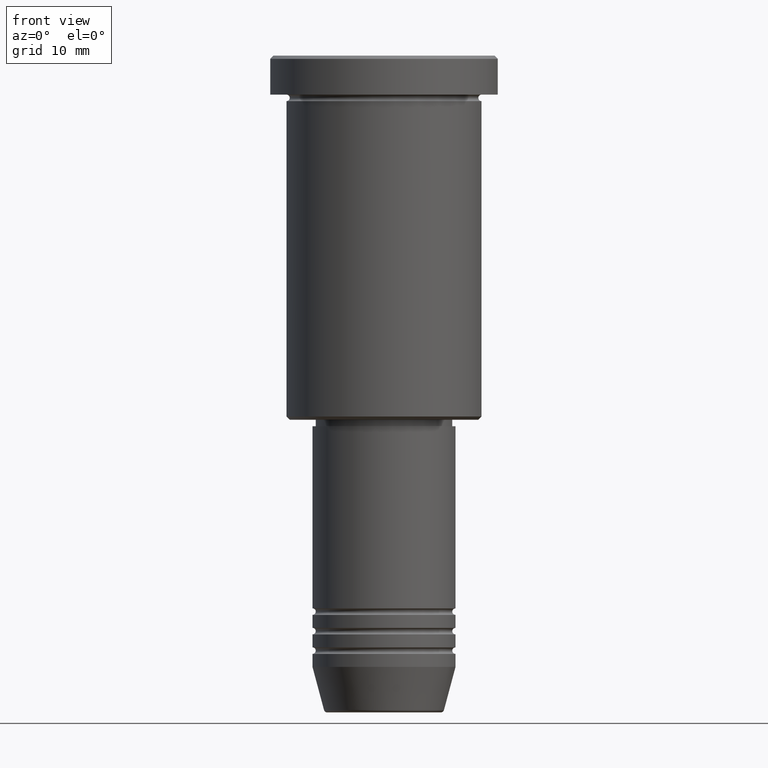
[diagram: clean part render]
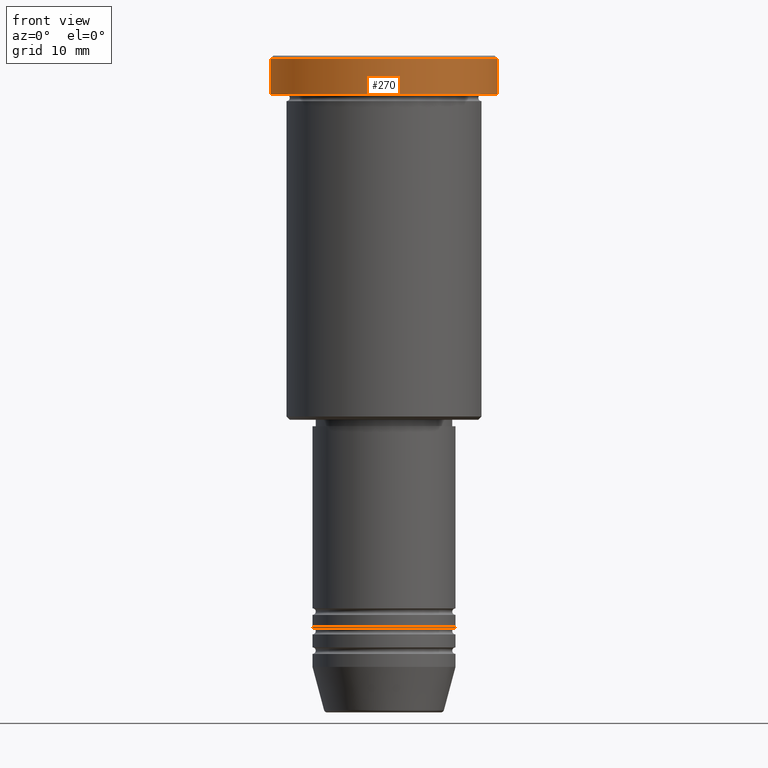
[diagram: same view with one face highlighted and labeled with its STEP entity id]
A machine part, front view. The second image highlights one B-rep face of the part: STEP entity #270.
In plain terms, the highlighted cylindrical surface (partial cylindrical patch) has radius 17.5 mm, axis along (-0, -0, 1).
Its self-contained STEP definition (entity closure, byte-faithful):
#23 = CIRCLE ( 'NONE', #694, 17.50000000000000000 ) ;
#70 = EDGE_LOOP ( 'NONE', ( #747, #887, #1011, #1078 ) ) ;
#72 = CARTESIAN_POINT ( 'NONE',  ( 17.50000000000000000, 0.000000000000000000, 0.000000000000000000 ) ) ;
#192 = EDGE_CURVE ( 'NONE', #649, #362, #23, .T. ) ;
#198 = CARTESIAN_POINT ( 'NONE',  ( -17.50000000000000000, 2.143131898507868248E-15, -0.5000000000000003331 ) ) ;
#231 = EDGE_CURVE ( 'NONE', #362, #800, #979, .T. ) ;
#233 = EDGE_CURVE ( 'NONE', #649, #947, #319, .T. ) ;
#235 = CARTESIAN_POINT ( 'NONE',  ( 0.000000000000000000, 0.000000000000000000, -5.999999999999995559 ) ) ;
#257 = VECTOR ( 'NONE', #600, 1000.000000000000000 ) ;
#270 = ADVANCED_FACE ( 'NONE', ( #511 ), #772, .T. ) ;
#319 = LINE ( 'NONE', #688, #773 ) ;
#328 = CARTESIAN_POINT ( 'NONE',  ( -17.50000000000000000, 2.143131898507868248E-15, -5.999999999999995559 ) ) ;
#347 = CARTESIAN_POINT ( 'NONE',  ( 17.50000000000000000, 0.000000000000000000, -5.999999999999995559 ) ) ;
#362 = VERTEX_POINT ( 'NONE', #347 ) ;
#403 = AXIS2_PLACEMENT_3D ( 'NONE', #594, #693, #1057 ) ;
#408 = DIRECTION ( 'NONE',  ( 1.000000000000000000, 0.000000000000000000, 0.000000000000000000 ) ) ;
#413 = DIRECTION ( 'NONE',  ( -0.000000000000000000, -0.000000000000000000, 1.000000000000000000 ) ) ;
#511 = FACE_OUTER_BOUND ( 'NONE', #70, .T. ) ;
#523 = CARTESIAN_POINT ( 'NONE',  ( 17.50000000000000000, 0.000000000000000000, -0.5000000000000003331 ) ) ;
#594 = CARTESIAN_POINT ( 'NONE',  ( 0.000000000000000000, 0.000000000000000000, 0.000000000000000000 ) ) ;
#600 = DIRECTION ( 'NONE',  ( -0.000000000000000000, -0.000000000000000000, 1.000000000000000000 ) ) ;
#649 = VERTEX_POINT ( 'NONE', #328 ) ;
#688 = CARTESIAN_POINT ( 'NONE',  ( -17.50000000000000000, 2.143131898507868248E-15, 0.000000000000000000 ) ) ;
#693 = DIRECTION ( 'NONE',  ( -0.000000000000000000, -0.000000000000000000, 1.000000000000000000 ) ) ;
#694 = AXIS2_PLACEMENT_3D ( 'NONE', #235, #413, #408 ) ;
#706 = CARTESIAN_POINT ( 'NONE',  ( 0.000000000000000000, 0.000000000000000000, -0.5000000000000003331 ) ) ;
#707 = EDGE_CURVE ( 'NONE', #800, #947, #1040, .T. ) ;
#747 = ORIENTED_EDGE ( 'NONE', *, *, #233, .F. ) ;
#772 = CYLINDRICAL_SURFACE ( 'NONE', #403, 17.50000000000000000 ) ;
#773 = VECTOR ( 'NONE', #1063, 1000.000000000000000 ) ;
#800 = VERTEX_POINT ( 'NONE', #523 ) ;
#857 = DIRECTION ( 'NONE',  ( 0.000000000000000000, 0.000000000000000000, -1.000000000000000000 ) ) ;
#887 = ORIENTED_EDGE ( 'NONE', *, *, #192, .T. ) ;
#947 = VERTEX_POINT ( 'NONE', #198 ) ;
#979 = LINE ( 'NONE', #72, #257 ) ;
#1011 = ORIENTED_EDGE ( 'NONE', *, *, #231, .T. ) ;
#1040 = CIRCLE ( 'NONE', #1097, 17.50000000000000000 ) ;
#1057 = DIRECTION ( 'NONE',  ( 1.000000000000000000, 0.000000000000000000, 0.000000000000000000 ) ) ;
#1062 = DIRECTION ( 'NONE',  ( 1.000000000000000000, 0.000000000000000000, 0.000000000000000000 ) ) ;
#1063 = DIRECTION ( 'NONE',  ( -0.000000000000000000, -0.000000000000000000, 1.000000000000000000 ) ) ;
#1078 = ORIENTED_EDGE ( 'NONE', *, *, #707, .T. ) ;
#1097 = AXIS2_PLACEMENT_3D ( 'NONE', #706, #857, #1062 ) ;